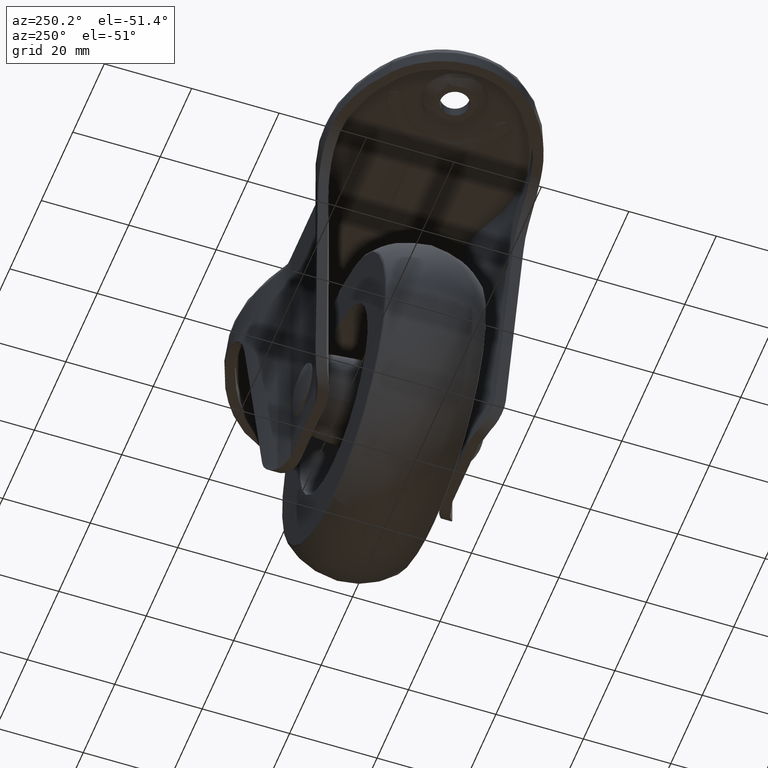
[diagram: clean part render]
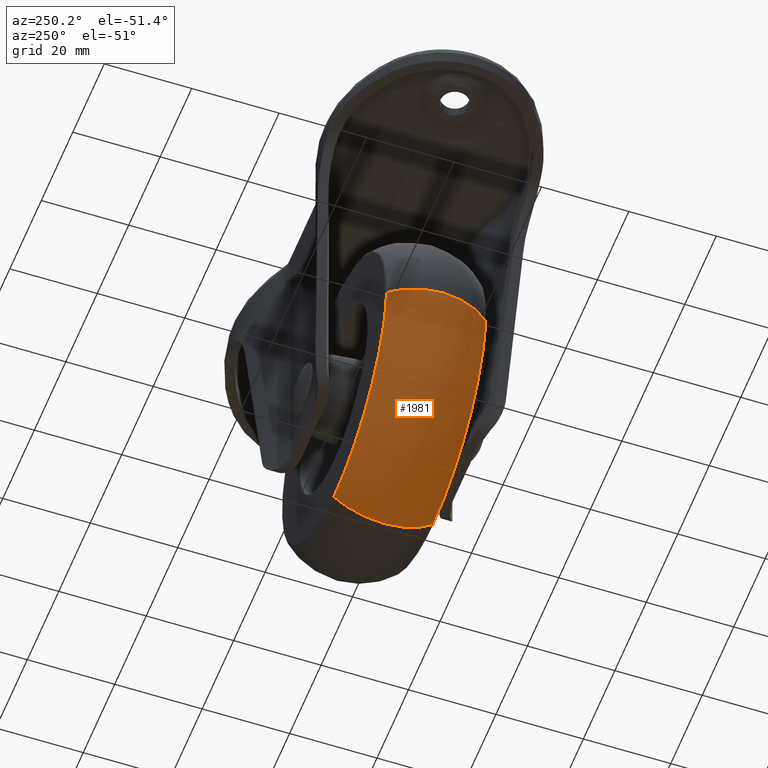
[diagram: same view with one face highlighted and labeled with its STEP entity id]
A machine part, auxiliary view. The second image highlights one B-rep face of the part: STEP entity #1981.
In plain terms, the highlighted face is a freeform B-spline surface patch.
Its self-contained STEP definition (entity closure, byte-faithful):
#1589=CARTESIAN_POINT('',(0.416828760859171,11.333333355879009,-90.668432805520183));
#1590=VERTEX_POINT('',#1589);
#1606=CARTESIAN_POINT('',(0.0,11.333333356382060,-90.671051851883405));
#1607=VERTEX_POINT('',#1606);
#1608=CARTESIAN_POINT('',(0.416828760859171,11.333333355879004,-90.668432805520183));
#1609=CARTESIAN_POINT('',(0.208422608668279,11.333333356382065,-90.671051851883391));
#1610=CARTESIAN_POINT('',(0.0,11.333333356382060,-90.671051851883405));
#1618=(BOUNDED_CURVE()B_SPLINE_CURVE(2,(#1608,#1609,#1610),.UNSPECIFIED.,.F.,.U.)B_SPLINE_CURVE_WITH_KNOTS((3,3),(0.497784295918441,0.500000000000000),.UNSPECIFIED.)CURVE()GEOMETRIC_REPRESENTATION_ITEM()RATIONAL_B_SPLINE_CURVE((0.994854295636446,0.997404141198456,1.0))REPRESENTATION_ITEM(''));
#1619=EDGE_CURVE('',#1590,#1607,#1618,.T.);
#1621=CARTESIAN_POINT('',(-33.090302693152083,11.333333355763241,-59.813125304134793));
#1622=VERTEX_POINT('',#1621);
#1623=CARTESIAN_POINT('',(0.0,11.333333356382060,-90.671051851883405));
#1624=CARTESIAN_POINT('',(-30.933228113935510,11.333333356382060,-90.671051851883419));
#1625=CARTESIAN_POINT('',(-33.090302693152076,11.333333355763248,-59.813125304134786));
#1633=(BOUNDED_CURVE()B_SPLINE_CURVE(2,(#1623,#1624,#1625),.UNSPECIFIED.,.F.,.U.)B_SPLINE_CURVE_WITH_KNOTS((3,3),(0.500000000000000,0.737833686532154),.UNSPECIFIED.)CURVE()GEOMETRIC_REPRESENTATION_ITEM()RATIONAL_B_SPLINE_CURVE((1.0,0.721360504037311,0.972879876380762))REPRESENTATION_ITEM(''));
#1634=EDGE_CURVE('',#1607,#1622,#1633,.T.);
#1832=CARTESIAN_POINT('',(-33.090302804869580,-11.333333299728819,-59.813125312003898));
#1833=VERTEX_POINT('',#1832);
#1834=CARTESIAN_POINT('',(-33.090302804869573,-11.333333299728817,-59.813125312003891));
#1835=CARTESIAN_POINT('',(-43.202467797790980,0.000000078441040,-60.520000221163585));
#1836=CARTESIAN_POINT('',(-33.090302693152069,11.333333355763244,-59.813125304134786));
#1844=(BOUNDED_CURVE()B_SPLINE_CURVE(2,(#1834,#1835,#1836),.UNSPECIFIED.,.F.,.U.)B_SPLINE_CURVE_WITH_KNOTS((3,3),(-1.710040864773123,-0.289959127900947),.UNSPECIFIED.)CURVE()GEOMETRIC_REPRESENTATION_ITEM()RATIONAL_B_SPLINE_CURVE((0.868722746517381,0.647507706783236,0.868722748799793))REPRESENTATION_ITEM(''));
#1845=EDGE_CURVE('',#1833,#1622,#1844,.T.);
#1896=CARTESIAN_POINT('',(0.416828762341289,-11.333333299748880,-90.668432917590295));
#1897=VERTEX_POINT('',#1896);
#1911=CARTESIAN_POINT('',(0.416828762341288,-11.333333299748876,-90.668432917590295));
#1912=CARTESIAN_POINT('',(0.544208714920043,0.000000078613306,-100.804473926472510));
#1913=CARTESIAN_POINT('',(0.416828760859171,11.333333355879004,-90.668432805520183));
#1921=(BOUNDED_CURVE()B_SPLINE_CURVE(2,(#1911,#1912,#1913),.UNSPECIFIED.,.F.,.U.)B_SPLINE_CURVE_WITH_KNOTS((3,3),(-1.710040864776495,-0.289959127881487),.UNSPECIFIED.)CURVE()GEOMETRIC_REPRESENTATION_ITEM()RATIONAL_B_SPLINE_CURVE((0.888713648360747,0.662408045305696,0.888713650700810))REPRESENTATION_ITEM(''));
#1922=EDGE_CURVE('',#1897,#1590,#1921,.T.);
#1930=CARTESIAN_POINT('',(0.407129190061715,-12.141247478081578,-89.896606140943092));
#1931=CARTESIAN_POINT('',(-30.186717260248503,-12.141247478081581,-90.281079992061834));
#1932=CARTESIAN_POINT('',(-32.320294109687318,-12.141247478081578,-59.759299070973874));
#1933=CARTESIAN_POINT('',(0.562800502157988,-0.000000330962834,-102.283883468472240));
#1934=CARTESIAN_POINT('',(-41.729013903409282,-0.000000330962833,-102.815366058663020));
#1935=CARTESIAN_POINT('',(-44.678392507470555,-0.000000330962834,-60.623172404996126));
#1936=CARTESIAN_POINT('',(0.407129194219764,12.141247153783556,-89.896606471812660));
#1937=CARTESIAN_POINT('',(-30.186717568548289,12.141247153783549,-90.281080326858131));
#1938=CARTESIAN_POINT('',(-32.320294439777527,12.141247153783555,-59.759299094048316));
#1946=(BOUNDED_SURFACE()B_SPLINE_SURFACE(2,2,((#1930,#1933,#1936),(#1931,#1934,#1937),(#1932,#1935,#1938)),.UNSPECIFIED.,.F.,.F.,.U.)B_SPLINE_SURFACE_WITH_KNOTS((3,3),(3,3),(0.0,59.630383451579640),(0.0,28.568466749480461),.UNSPECIFIED.)GEOMETRIC_REPRESENTATION_ITEM()RATIONAL_B_SPLINE_SURFACE(((0.912450913483905,0.638670786576356,0.912450903036333),(0.655890255826712,0.459090937831586,0.655890248316762),(0.891926060871329,0.624304398676774,0.891926050658767)))REPRESENTATION_ITEM('')SURFACE());
#1947=ORIENTED_EDGE('',*,*,#1634,.F.);
#1948=ORIENTED_EDGE('',*,*,#1619,.F.);
#1949=ORIENTED_EDGE('',*,*,#1922,.F.);
#1950=CARTESIAN_POINT('',(0.0,-11.333333331469920,-90.671051997916635));
#1951=VERTEX_POINT('',#1950);
#1952=CARTESIAN_POINT('',(0.416828762341288,-11.333333299748880,-90.668432917590295));
#1953=CARTESIAN_POINT('',(0.208422609659574,-11.333333331469918,-90.671051997916649));
#1954=CARTESIAN_POINT('',(0.0,-11.333333331469920,-90.671051997916635));
#1962=(BOUNDED_CURVE()B_SPLINE_CURVE(2,(#1952,#1953,#1954),.UNSPECIFIED.,.F.,.U.)B_SPLINE_CURVE_WITH_KNOTS((3,3),(0.497784295917659,0.500000000000000),.UNSPECIFIED.)CURVE()GEOMETRIC_REPRESENTATION_ITEM()RATIONAL_B_SPLINE_CURVE((0.994854295634647,0.997404141197540,1.0))REPRESENTATION_ITEM(''));
#1963=EDGE_CURVE('',#1897,#1951,#1962,.T.);
#1964=ORIENTED_EDGE('',*,*,#1963,.T.);
#1965=CARTESIAN_POINT('',(0.0,-11.333333331469920,-90.671051997916635));
#1966=CARTESIAN_POINT('',(-30.933228250005580,-11.333333331469921,-90.671051997916621));
#1967=CARTESIAN_POINT('',(-33.090302804869580,-11.333333299728823,-59.813125312003891));
#1975=(BOUNDED_CURVE()B_SPLINE_CURVE(2,(#1965,#1966,#1967),.UNSPECIFIED.,.F.,.U.)B_SPLINE_CURVE_WITH_KNOTS((3,3),(0.500000000000000,0.737833686531537),.UNSPECIFIED.)CURVE()GEOMETRIC_REPRESENTATION_ITEM()RATIONAL_B_SPLINE_CURVE((1.0,0.721360504038034,0.972879876379457))REPRESENTATION_ITEM(''));
#1976=EDGE_CURVE('',#1951,#1833,#1975,.T.);
#1977=ORIENTED_EDGE('',*,*,#1976,.T.);
#1978=ORIENTED_EDGE('',*,*,#1845,.T.);
#1979=EDGE_LOOP('',(#1947,#1948,#1949,#1964,#1977,#1978));
#1980=FACE_OUTER_BOUND('',#1979,.T.);
#1981=ADVANCED_FACE('',(#1980),#1946,.T.);